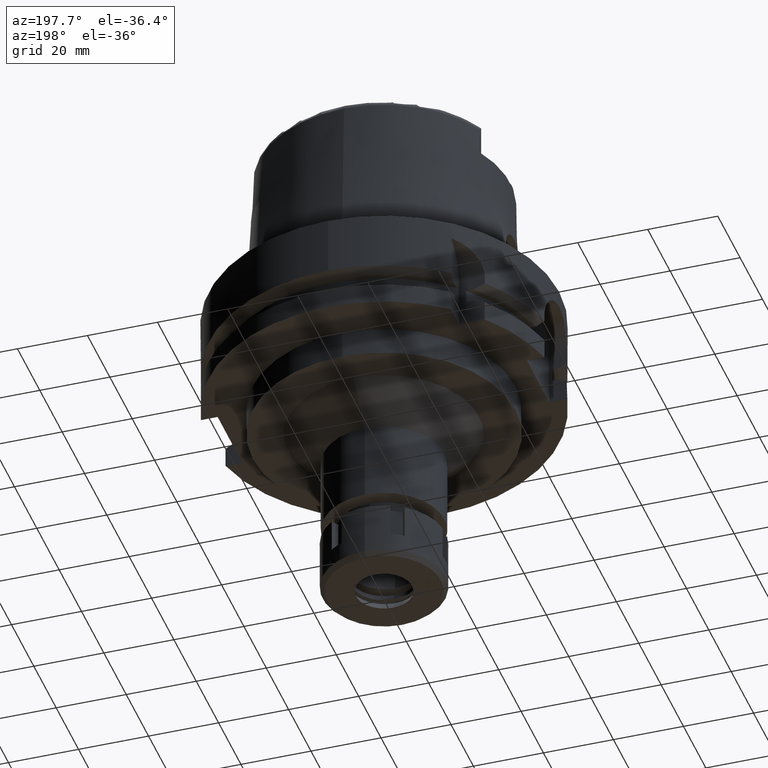
[diagram: clean part render]
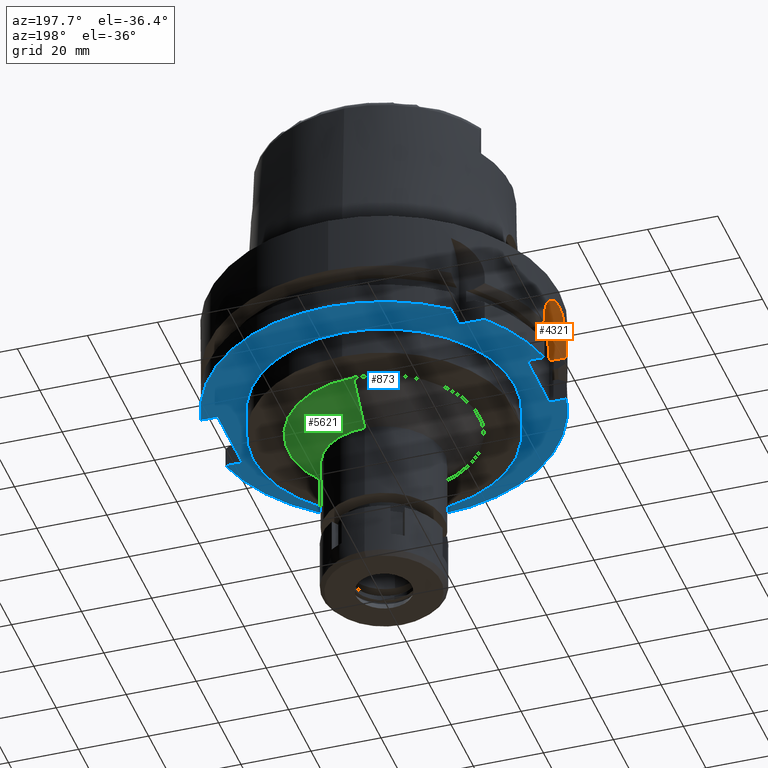
[diagram: same view with three faces highlighted in distinct colors, each labeled with its STEP entity id]
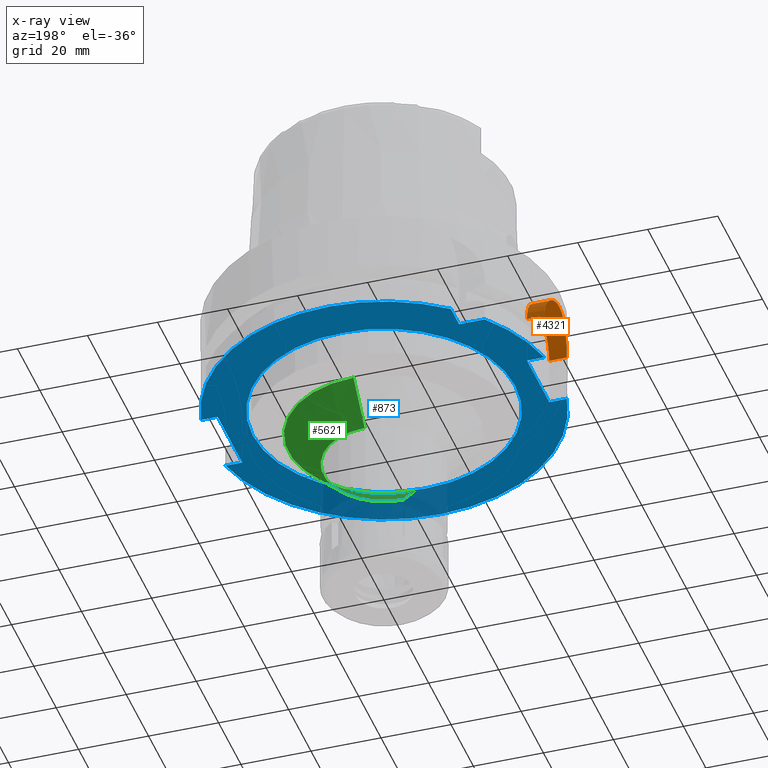
[diagram: x-ray of the same camera — body ghosted, the three highlighted faces saturated]
A machine part, auxiliary view with three faces highlighted in distinct colors.
The next image is the same camera in x-ray (body ghosted, the three faces saturated) — at least one of them is partly hidden behind the body in this view.
Their STEP definitions:

[orange] entity #4321 — the highlighted cylindrical surface (partial cylindrical patch) has radius 10 mm, axis along (1, 0, 0).
#27 = CARTESIAN_POINT ( 'NONE',  ( -49.94994066468480298, -2.259794752817469110, -5.253209555805507414 ) ) ;
#270 = CARTESIAN_POINT ( 'NONE',  ( -44.00000000000000000, 10.00000000000000000, -15.00000000000000000 ) ) ;
#371 = CARTESIAN_POINT ( 'NONE',  ( -49.62881521159336273, -6.086586877219529512, -7.058779781998447689 ) ) ;
#400 = CARTESIAN_POINT ( 'NONE',  ( -49.09036018454670369, 9.497439763984472094, -11.80158618427494410 ) ) ;
#432 = CARTESIAN_POINT ( 'NONE',  ( -49.56392084514535412, 6.594210339440433444, -7.474928745218221593 ) ) ;
#451 = FACE_OUTER_BOUND ( 'NONE', #3089, .T. ) ;
#466 = CARTESIAN_POINT ( 'NONE',  ( -49.62899891494354421, 6.085090487835675077, -7.057631952576961076 ) ) ;
#494 = CARTESIAN_POINT ( 'NONE',  ( -49.98420942202844941, -1.297367244915107687, -5.079122034242771200 ) ) ;
#643 = CIRCLE ( 'NONE', #2026, 10.00000000000000000 ) ;
#648 = EDGE_CURVE ( 'NONE', #1520, #3652, #3940, .T. ) ;
#842 = CARTESIAN_POINT ( 'NONE',  ( -49.56373229003720837, -6.595625868857654339, -7.476172084618819547 ) ) ;
#872 = CARTESIAN_POINT ( 'NONE',  ( -48.98979485565999425, 10.00000000000000000, -15.00000000000000000 ) ) ;
#1223 = CARTESIAN_POINT ( 'NONE',  ( -44.00000000000000000, -10.00000000000000000, -15.00000000000000000 ) ) ;
#1337 = CARTESIAN_POINT ( 'NONE',  ( -48.98979485566341907, -10.00000000000061995, -14.34992636891092666 ) ) ;
#1355 = CARTESIAN_POINT ( 'NONE',  ( -50.00000000000000000, 0.0000000000000000000, -15.00000000000000000 ) ) ;
#1367 = CARTESIAN_POINT ( 'NONE',  ( -49.36390707118801657, -7.958783023983241556, -8.909500093796756559 ) ) ;
#1430 = CARTESIAN_POINT ( 'NONE',  ( -49.93465246831761561, 2.574515594304664035, -5.331509912841217336 ) ) ;
#1459 = CARTESIAN_POINT ( 'NONE',  ( -49.72224263843126124, -5.270247532519865885, -6.495087439147432029 ) ) ;
#1520 = VERTEX_POINT ( 'NONE', #270 ) ;
#1801 = CARTESIAN_POINT ( 'NONE',  ( -49.09278989258839943, -9.481937093884811318, -11.80611569221511559 ) ) ;
#1833 = CARTESIAN_POINT ( 'NONE',  ( -49.97485841623518610, -1.617643659042722337, -5.126307811638905143 ) ) ;
#1867 = CARTESIAN_POINT ( 'NONE',  ( -49.24041324777747519, -8.690181341251232539, -10.00850486959623176 ) ) ;
#1896 = CARTESIAN_POINT ( 'NONE',  ( -49.00274337469999608, -9.937182510806511715, -13.70561547083139331 ) ) ;
#1923 = CARTESIAN_POINT ( 'NONE',  ( -49.87788521341418146, -3.505694118459035558, -5.628880875401277351 ) ) ;
#2026 = AXIS2_PLACEMENT_3D ( 'NONE', #4726, #3427, #2372 ) ;
#2268 = CARTESIAN_POINT ( 'NONE',  ( -49.43022059887681507, -7.541711222667776937, -8.400035818733632809 ) ) ;
#2295 = CARTESIAN_POINT ( 'NONE',  ( -49.18453679201154216, 8.997008707026115104, -10.58560031123585965 ) ) ;
#2331 = CARTESIAN_POINT ( 'NONE',  ( -49.99999360500559931, -0.3269239678294739715, -5.000048098238591976 ) ) ;
#2348 = DIRECTION ( 'NONE',  ( 0.0000000000000000000, 0.0000000000000000000, 1.000000000000000000 ) ) ;
#2363 = CARTESIAN_POINT ( 'NONE',  ( -49.87786566908135200, 3.505808458107193104, -5.628992301551426714 ) ) ;
#2372 = DIRECTION ( 'NONE',  ( 0.0000000000000000000, 0.0000000000000000000, 1.000000000000000000 ) ) ;
#2413 = CARTESIAN_POINT ( 'NONE',  ( -48.98979485565999425, -10.00000000000000000, -15.00000000000000000 ) ) ;
#2449 = DIRECTION ( 'NONE',  ( 1.000000000000000000, 4.627973610177999800E-14, 0.0000000000000000000 ) ) ;
#2734 = CARTESIAN_POINT ( 'NONE',  ( -49.80582381222812671, -4.411840447473320381, -6.019770980953928152 ) ) ;
#2761 = CARTESIAN_POINT ( 'NONE',  ( -49.83132479518987168, -4.114898998883623094, -5.879966185470739681 ) ) ;
#2791 = CARTESIAN_POINT ( 'NONE',  ( -49.05327106856116615, 9.684690085528719905, -12.42418889650314107 ) ) ;
#2809 = CYLINDRICAL_SURFACE ( 'NONE', #3971, 10.00000000000000000 ) ;
#2826 = CARTESIAN_POINT ( 'NONE',  ( -49.36522353530785523, 7.944764735771466135, -8.917965014434020787 ) ) ;
#3089 = EDGE_LOOP ( 'NONE', ( #4668, #3951, #3320, #5954 ) ) ;
#3233 = CARTESIAN_POINT ( 'NONE',  ( -48.98979485566341907, 10.00000000000068212, -14.67477384672370100 ) ) ;
#3259 = CARTESIAN_POINT ( 'NONE',  ( -50.00001276120485727, 0.6509093675188895034, -4.999956924247983991 ) ) ;
#3288 = CARTESIAN_POINT ( 'NONE',  ( -49.89857304296576501, 3.198445865227089069, -5.519613993474073332 ) ) ;
#3320 = ORIENTED_EDGE ( 'NONE', *, *, #5040, .F. ) ;
#3325 = CARTESIAN_POINT ( 'NONE',  ( -49.00580010131365327, 9.921319867194132058, -13.70617931160536962 ) ) ;
#3405 = VECTOR ( 'NONE', #5848, 1000.000000000000000 ) ;
#3427 = DIRECTION ( 'NONE',  ( 1.000000000000000000, 0.0000000000000000000, 0.0000000000000000000 ) ) ;
#3478 = CARTESIAN_POINT ( 'NONE',  ( -44.00000000000000000, 10.00000000000000000, -15.00000000000000000 ) ) ;
#3560 = B_SPLINE_CURVE_WITH_KNOTS ( 'NONE', 3,
 ( #872, #3233, #5685, #3325, #5213, #2791, #400, #2295, #5121, #5717, #2826, #4251, #5089, #4683, #432, #466, #5180, #3749, #4280, #5651, #6093, #2363, #3288, #1430, #4746, #4628, #3259, #2331, #5149, #494, #1833, #27, #3721, #4217, #1923, #2761, #2734, #6126, #1459, #4718, #371, #842, #5624, #2268, #1367, #1867, #4152, #6059, #1801, #3687, #5584, #1896, #1337, #4338 ),
 .UNSPECIFIED., .F., .F.,
 ( 4, 2, 2, 2, 2, 2, 2, 2, 2, 2, 2, 2, 2, 2, 2, 2, 2, 2, 2, 2, 2, 2, 2, 2, 2, 2, 4 ),
 ( 0.0000000000000000000, 0.03125000000000011102, 0.06250000000000022204, 0.1250000000000004163, 0.1875000000000006106, 0.2187500000000007216, 0.2500000000000008327, 0.2812500000000008327, 0.3125000000000008327, 0.3437500000000008327, 0.3750000000000008327, 0.4062500000000007772, 0.4375000000000007216, 0.5000000000000005551, 0.5312500000000005551, 0.5625000000000005551, 0.5937500000000005551, 0.6250000000000005551, 0.6562500000000005551, 0.6875000000000005551, 0.7187500000000005551, 0.7500000000000005551, 0.8125000000000004441, 0.8750000000000003331, 0.9062500000000002220, 0.9375000000000001110, 1.000000000000000000 ),
 .UNSPECIFIED. ) ;
#3652 = VERTEX_POINT ( 'NONE', #3809 ) ;
#3687 = CARTESIAN_POINT ( 'NONE',  ( -49.05614964883081797, -9.669712101284867245, -12.42999805995558305 ) ) ;
#3703 = EDGE_CURVE ( 'NONE', #3652, #5595, #3560, .T. ) ;
#3721 = CARTESIAN_POINT ( 'NONE',  ( -49.93455893158446912, -2.576326564035913869, -5.331990395739981459 ) ) ;
#3749 = CARTESIAN_POINT ( 'NONE',  ( -49.72222128286315979, 5.270358358214859429, -6.495232976551800874 ) ) ;
#3799 = LINE ( 'NONE', #2413, #3978 ) ;
#3809 = CARTESIAN_POINT ( 'NONE',  ( -48.98979485565999425, 10.00000000000000000, -15.00000000000000000 ) ) ;
#3940 = LINE ( 'NONE', #3478, #3405 ) ;
#3951 = ORIENTED_EDGE ( 'NONE', *, *, #5614, .T. ) ;
#3971 = AXIS2_PLACEMENT_3D ( 'NONE', #1355, #5638, #2348 ) ;
#3978 = VECTOR ( 'NONE', #2449, 1000.000000000000000 ) ;
#4152 = CARTESIAN_POINT ( 'NONE',  ( -49.18424439192180131, -8.998583427525336020, -10.58912033888665505 ) ) ;
#4217 = CARTESIAN_POINT ( 'NONE',  ( -49.89845962713046390, -3.200212664194285850, -5.520212011311250500 ) ) ;
#4251 = CARTESIAN_POINT ( 'NONE',  ( -49.43056103556367020, 7.527563822850312114, -8.408713046767697818 ) ) ;
#4280 = CARTESIAN_POINT ( 'NONE',  ( -49.75134977747793386, 4.988750540692706181, -6.326968285705540040 ) ) ;
#4321 = ADVANCED_FACE ( 'NONE', ( #451 ), #2809, .F. ) ;
#4338 = CARTESIAN_POINT ( 'NONE',  ( -48.98979485565999425, -10.00000000000000000, -15.00000000000000000 ) ) ;
#4628 = CARTESIAN_POINT ( 'NONE',  ( -49.98727337604294263, 1.297072131884469570, -5.063079227123298942 ) ) ;
#4668 = ORIENTED_EDGE ( 'NONE', *, *, #648, .F. ) ;
#4683 = CARTESIAN_POINT ( 'NONE',  ( -49.53074240762869351, 6.838214994895060350, -7.696049756172459233 ) ) ;
#4718 = CARTESIAN_POINT ( 'NONE',  ( -49.66071698589643546, -5.821521321421013972, -6.862562852904170896 ) ) ;
#4726 = CARTESIAN_POINT ( 'NONE',  ( -44.00000000000000000, 0.0000000000000000000, -15.00000000000000000 ) ) ;
#4746 = CARTESIAN_POINT ( 'NONE',  ( -49.95007296249472972, 2.256697800569569257, -5.252537339674993255 ) ) ;
#4827 = CARTESIAN_POINT ( 'NONE',  ( -48.98979485565999425, -10.00000000000000000, -15.00000000000000000 ) ) ;
#5040 = EDGE_CURVE ( 'NONE', #5595, #5135, #3799, .T. ) ;
#5089 = CARTESIAN_POINT ( 'NONE',  ( -49.46402646853832152, 7.305184000900602825, -8.163237007348122631 ) ) ;
#5121 = CARTESIAN_POINT ( 'NONE',  ( -49.24057617454467817, 8.689264381284512950, -10.00689432263757261 ) ) ;
#5135 = VERTEX_POINT ( 'NONE', #1223 ) ;
#5149 = CARTESIAN_POINT ( 'NONE',  ( -49.99680002002526891, -0.6514146689907366339, -5.015875041971508352 ) ) ;
#5180 = CARTESIAN_POINT ( 'NONE',  ( -49.66109665971371356, 5.818199470677054563, -6.860273031121217002 ) ) ;
#5213 = CARTESIAN_POINT ( 'NONE',  ( -49.01532077360067774, 9.874334691798127395, -13.38637230121983279 ) ) ;
#5584 = CARTESIAN_POINT ( 'NONE',  ( -49.04050012748191989, -9.748510700173220300, -12.74779322322638997 ) ) ;
#5595 = VERTEX_POINT ( 'NONE', #4827 ) ;
#5614 = EDGE_CURVE ( 'NONE', #1520, #5135, #643, .T. ) ;
#5624 = CARTESIAN_POINT ( 'NONE',  ( -49.53067426088643543, -6.838737925735863143, -7.696485171463537611 ) ) ;
#5638 = DIRECTION ( 'NONE',  ( 1.000000000000000000, 0.0000000000000000000, 0.0000000000000000000 ) ) ;
#5651 = CARTESIAN_POINT ( 'NONE',  ( -49.80597247480898915, 4.410163543088208904, -6.018949576889937703 ) ) ;
#5685 = CARTESIAN_POINT ( 'NONE',  ( -48.99301409864090573, 9.984267675071087922, -14.35096447838950695 ) ) ;
#5717 = CARTESIAN_POINT ( 'NONE',  ( -49.33322137804878338, 8.140496473599078797, -9.182651765820171619 ) ) ;
#5848 = DIRECTION ( 'NONE',  ( -1.000000000000000000, 4.627973610177999800E-14, 0.0000000000000000000 ) ) ;
#5954 = ORIENTED_EDGE ( 'NONE', *, *, #3703, .F. ) ;
#6059 = CARTESIAN_POINT ( 'NONE',  ( -49.11383813249523911, -9.372673253755635869, -11.49857013436666442 ) ) ;
#6093 = CARTESIAN_POINT ( 'NONE',  ( -49.83161392523056321, 4.111256529898119183, -5.878401453227955820 ) ) ;
#6126 = CARTESIAN_POINT ( 'NONE',  ( -49.75118674890808279, -4.990374617595827900, -6.327904852817182402 ) ) ;

[blue] entity #873 — the highlighted planar face has unit normal (0, 0, 1).
#50 = VECTOR ( 'NONE', #4461, 1000.000000000000000 ) ;
#148 = EDGE_CURVE ( 'NONE', #767, #2490, #2818, .T. ) ;
#158 = CARTESIAN_POINT ( 'NONE',  ( -48.98979485565999425, -10.00000000000000000, -29.00000000000000000 ) ) ;
#162 = ORIENTED_EDGE ( 'NONE', *, *, #2735, .T. ) ;
#383 = LINE ( 'NONE', #5979, #799 ) ;
#427 = DIRECTION ( 'NONE',  ( -1.000000000000000000, 4.627973610177000155E-14, 0.0000000000000000000 ) ) ;
#431 = LINE ( 'NONE', #4278, #5385 ) ;
#452 = EDGE_CURVE ( 'NONE', #6061, #2349, #2230, .T. ) ;
#538 = CIRCLE ( 'NONE', #3418, 37.50000000000000000 ) ;
#554 = VERTEX_POINT ( 'NONE', #3774 ) ;
#563 = VERTEX_POINT ( 'NONE', #926 ) ;
#595 = CARTESIAN_POINT ( 'NONE',  ( -44.00000000000000000, -10.00000000000000000, -29.00000000000000000 ) ) ;
#741 = VERTEX_POINT ( 'NONE', #5404 ) ;
#767 = VERTEX_POINT ( 'NONE', #1411 ) ;
#799 = VECTOR ( 'NONE', #5132, 1000.000000000000000 ) ;
#803 = VECTOR ( 'NONE', #5944, 1000.000000000000000 ) ;
#851 = LINE ( 'NONE', #4635, #803 ) ;
#857 = LINE ( 'NONE', #885, #5450 ) ;
#863 = DIRECTION ( 'NONE',  ( 0.0000000000000000000, -1.000000000000000000, 0.0000000000000000000 ) ) ;
#864 = DIRECTION ( 'NONE',  ( 0.0000000000000000000, 0.0000000000000000000, 1.000000000000000000 ) ) ;
#873 = ADVANCED_FACE ( 'NONE', ( #5783, #1523 ), #5310, .F. ) ;
#885 = CARTESIAN_POINT ( 'NONE',  ( -31.50000000000000000, 31.50000000000000000, -29.00000000000000000 ) ) ;
#926 = CARTESIAN_POINT ( 'NONE',  ( -44.00000000000000000, 10.00000000000000000, -29.00000000000000000 ) ) ;
#931 = CARTESIAN_POINT ( 'NONE',  ( 48.77499359303000404, 11.00000000000000000, -29.00000000000000000 ) ) ;
#963 = DIRECTION ( 'NONE',  ( -1.000000000000000000, 1.785659532940000023E-14, 0.0000000000000000000 ) ) ;
#1102 = VECTOR ( 'NONE', #963, 1000.000000000000000 ) ;
#1203 = EDGE_CURVE ( 'NONE', #4058, #1635, #431, .T. ) ;
#1275 = CARTESIAN_POINT ( 'NONE',  ( 0.0000000000000000000, -37.50000000000000000, -29.00000000000000000 ) ) ;
#1411 = CARTESIAN_POINT ( 'NONE',  ( -38.82975663071000128, 31.50000000000000000, -29.00000000000000000 ) ) ;
#1440 = ORIENTED_EDGE ( 'NONE', *, *, #2877, .F. ) ;
#1513 = ORIENTED_EDGE ( 'NONE', *, *, #1203, .T. ) ;
#1523 = FACE_BOUND ( 'NONE', #5840, .T. ) ;
#1528 = AXIS2_PLACEMENT_3D ( 'NONE', #2270, #3169, #3752 ) ;
#1635 = VERTEX_POINT ( 'NONE', #4582 ) ;
#1730 = VERTEX_POINT ( 'NONE', #5610 ) ;
#1780 = EDGE_CURVE ( 'NONE', #4631, #2757, #538, .T. ) ;
#1802 = VECTOR ( 'NONE', #427, 1000.000000000000000 ) ;
#1814 = DIRECTION ( 'NONE',  ( -1.000000000000000000, -4.798503851105999980E-14, 0.0000000000000000000 ) ) ;
#1873 = CARTESIAN_POINT ( 'NONE',  ( 48.77499359303000404, -11.00000000000000000, -29.00000000000000000 ) ) ;
#1954 = DIRECTION ( 'NONE',  ( 0.0000000000000000000, 1.000000000000000000, 0.0000000000000000000 ) ) ;
#2000 = CIRCLE ( 'NONE', #3675, 37.50000000000000000 ) ;
#2198 = CARTESIAN_POINT ( 'NONE',  ( -44.00000000000000000, 10.00000000000000000, -29.00000000000000000 ) ) ;
#2230 = CIRCLE ( 'NONE', #4899, 50.00000000000000000 ) ;
#2270 = CARTESIAN_POINT ( 'NONE',  ( 0.0000000000000000000, 0.0000000000000000000, -29.00000000000000000 ) ) ;
#2349 = VERTEX_POINT ( 'NONE', #3266 ) ;
#2490 = VERTEX_POINT ( 'NONE', #3390 ) ;
#2495 = EDGE_CURVE ( 'NONE', #2349, #1635, #4786, .T. ) ;
#2658 = ORIENTED_EDGE ( 'NONE', *, *, #2495, .F. ) ;
#2663 = ORIENTED_EDGE ( 'NONE', *, *, #6079, .F. ) ;
#2724 = EDGE_CURVE ( 'NONE', #741, #767, #857, .T. ) ;
#2725 = CARTESIAN_POINT ( 'NONE',  ( 44.00000000000000000, 11.00000000000000000, -29.00000000000000000 ) ) ;
#2735 = EDGE_CURVE ( 'NONE', #1730, #563, #383, .T. ) ;
#2757 = VERTEX_POINT ( 'NONE', #3664 ) ;
#2788 = CARTESIAN_POINT ( 'NONE',  ( 0.0000000000000000000, 0.0000000000000000000, -29.00000000000000000 ) ) ;
#2818 = CIRCLE ( 'NONE', #1528, 50.00000000000000711 ) ;
#2849 = DIRECTION ( 'NONE',  ( 0.0000000000000000000, 0.0000000000000000000, -1.000000000000000000 ) ) ;
#2875 = VECTOR ( 'NONE', #4820, 1000.000000000000000 ) ;
#2877 = EDGE_CURVE ( 'NONE', #5442, #554, #3868, .T. ) ;
#2954 = CARTESIAN_POINT ( 'NONE',  ( 0.0000000000000000000, 0.0000000000000000000, -29.00000000000000000 ) ) ;
#3015 = LINE ( 'NONE', #595, #50 ) ;
#3071 = ORIENTED_EDGE ( 'NONE', *, *, #3666, .T. ) ;
#3169 = DIRECTION ( 'NONE',  ( 0.0000000000000000000, 0.0000000000000000000, 1.000000000000000000 ) ) ;
#3260 = ORIENTED_EDGE ( 'NONE', *, *, #2724, .F. ) ;
#3266 = CARTESIAN_POINT ( 'NONE',  ( 48.77499359303000404, -11.00000000000000000, -29.00000000000000000 ) ) ;
#3290 = EDGE_CURVE ( 'NONE', #741, #554, #851, .T. ) ;
#3354 = DIRECTION ( 'NONE',  ( 0.0000000000000000000, 0.0000000000000000000, -1.000000000000000000 ) ) ;
#3355 = ORIENTED_EDGE ( 'NONE', *, *, #452, .F. ) ;
#3390 = CARTESIAN_POINT ( 'NONE',  ( -48.98979485565999425, 10.00000000000000000, -29.00000000000000000 ) ) ;
#3418 = AXIS2_PLACEMENT_3D ( 'NONE', #6020, #2849, #863 ) ;
#3620 = EDGE_LOOP ( 'NONE', ( #1440, #3071, #1513, #2658, #3355, #2663, #162, #4997, #4421, #3260, #3848 ) ) ;
#3664 = CARTESIAN_POINT ( 'NONE',  ( 0.0000000000000000000, 37.50000000000000000, -29.00000000000000000 ) ) ;
#3666 = EDGE_CURVE ( 'NONE', #5442, #4058, #3779, .T. ) ;
#3675 = AXIS2_PLACEMENT_3D ( 'NONE', #5868, #3354, #1954 ) ;
#3709 = AXIS2_PLACEMENT_3D ( 'NONE', #2954, #4844, #4556 ) ;
#3752 = DIRECTION ( 'NONE',  ( -0.7765951326141738997, 0.6299999999999789102, 0.0000000000000000000 ) ) ;
#3774 = CARTESIAN_POINT ( 'NONE',  ( -31.50000000000000000, 38.82975663071000128, -29.00000000000000000 ) ) ;
#3779 = LINE ( 'NONE', #931, #1102 ) ;
#3828 = EDGE_CURVE ( 'NONE', #2757, #4631, #2000, .T. ) ;
#3848 = ORIENTED_EDGE ( 'NONE', *, *, #3290, .T. ) ;
#3868 = CIRCLE ( 'NONE', #5161, 50.00000000000000000 ) ;
#4048 = EDGE_CURVE ( 'NONE', #563, #2490, #4552, .T. ) ;
#4058 = VERTEX_POINT ( 'NONE', #2725 ) ;
#4278 = CARTESIAN_POINT ( 'NONE',  ( 44.00000000000000000, 11.00000000000000000, -29.00000000000000000 ) ) ;
#4421 = ORIENTED_EDGE ( 'NONE', *, *, #148, .F. ) ;
#4461 = DIRECTION ( 'NONE',  ( -1.000000000000000000, -4.627973610177000155E-14, 0.0000000000000000000 ) ) ;
#4552 = LINE ( 'NONE', #2198, #1802 ) ;
#4556 = DIRECTION ( 'NONE',  ( 1.000000000000000000, 0.0000000000000000000, 0.0000000000000000000 ) ) ;
#4582 = CARTESIAN_POINT ( 'NONE',  ( 44.00000000000000000, -11.00000000000000000, -29.00000000000000000 ) ) ;
#4622 = DIRECTION ( 'NONE',  ( 0.0000000000000000000, -1.000000000000000000, 0.0000000000000000000 ) ) ;
#4631 = VERTEX_POINT ( 'NONE', #1275 ) ;
#4635 = CARTESIAN_POINT ( 'NONE',  ( -31.50000000000000000, 31.50000000000000000, -29.00000000000000000 ) ) ;
#4646 = DIRECTION ( 'NONE',  ( 0.0000000000000000000, 1.000000000000000000, 0.0000000000000000000 ) ) ;
#4664 = CARTESIAN_POINT ( 'NONE',  ( 48.77499359303000404, 11.00000000000000000, -29.00000000000000000 ) ) ;
#4679 = DIRECTION ( 'NONE',  ( 0.0000000000000000000, 0.0000000000000000000, 1.000000000000000000 ) ) ;
#4786 = LINE ( 'NONE', #1873, #2875 ) ;
#4820 = DIRECTION ( 'NONE',  ( -1.000000000000000000, -1.711257052401000108E-14, 0.0000000000000000000 ) ) ;
#4844 = DIRECTION ( 'NONE',  ( 0.0000000000000000000, 0.0000000000000000000, 1.000000000000000000 ) ) ;
#4899 = AXIS2_PLACEMENT_3D ( 'NONE', #2788, #4679, #4622 ) ;
#4997 = ORIENTED_EDGE ( 'NONE', *, *, #4048, .T. ) ;
#5047 = CARTESIAN_POINT ( 'NONE',  ( 0.0000000000000000000, 0.0000000000000000000, -29.00000000000000000 ) ) ;
#5132 = DIRECTION ( 'NONE',  ( 0.0000000000000000000, 1.000000000000000000, 0.0000000000000000000 ) ) ;
#5150 = ORIENTED_EDGE ( 'NONE', *, *, #1780, .F. ) ;
#5161 = AXIS2_PLACEMENT_3D ( 'NONE', #5047, #864, #4646 ) ;
#5310 = PLANE ( 'NONE',  #3709 ) ;
#5385 = VECTOR ( 'NONE', #6056, 1000.000000000000000 ) ;
#5404 = CARTESIAN_POINT ( 'NONE',  ( -31.50000000000000000, 31.50000000000000000, -29.00000000000000000 ) ) ;
#5442 = VERTEX_POINT ( 'NONE', #4664 ) ;
#5450 = VECTOR ( 'NONE', #1814, 1000.000000000000000 ) ;
#5610 = CARTESIAN_POINT ( 'NONE',  ( -44.00000000000000000, -10.00000000000000000, -29.00000000000000000 ) ) ;
#5783 = FACE_OUTER_BOUND ( 'NONE', #3620, .T. ) ;
#5840 = EDGE_LOOP ( 'NONE', ( #5927, #5150 ) ) ;
#5868 = CARTESIAN_POINT ( 'NONE',  ( 0.0000000000000000000, 0.0000000000000000000, -29.00000000000000000 ) ) ;
#5927 = ORIENTED_EDGE ( 'NONE', *, *, #3828, .F. ) ;
#5944 = DIRECTION ( 'NONE',  ( 4.798503851105999980E-14, 1.000000000000000000, 0.0000000000000000000 ) ) ;
#5979 = CARTESIAN_POINT ( 'NONE',  ( -44.00000000000000000, -10.00000000000000000, -29.00000000000000000 ) ) ;
#6020 = CARTESIAN_POINT ( 'NONE',  ( 0.0000000000000000000, 0.0000000000000000000, -29.00000000000000000 ) ) ;
#6056 = DIRECTION ( 'NONE',  ( 0.0000000000000000000, -1.000000000000000000, 0.0000000000000000000 ) ) ;
#6061 = VERTEX_POINT ( 'NONE', #158 ) ;
#6079 = EDGE_CURVE ( 'NONE', #1730, #6061, #3015, .T. ) ;

[green] entity #5621 — the highlighted conical surface has half-angle 45 deg.
#70 = EDGE_CURVE ( 'NONE', #3309, #2412, #2217, .T. ) ;
#133 = LINE ( 'NONE', #633, #5679 ) ;
#325 = AXIS2_PLACEMENT_3D ( 'NONE', #2828, #3292, #4653 ) ;
#614 = DIRECTION ( 'NONE',  ( 0.0000000000000000000, 1.000000000000000000, 0.0000000000000000000 ) ) ;
#633 = CARTESIAN_POINT ( 'NONE',  ( 0.0000000000000000000, -27.25000000000000000, -37.00000000000000000 ) ) ;
#709 = ORIENTED_EDGE ( 'NONE', *, *, #3026, .T. ) ;
#841 = ORIENTED_EDGE ( 'NONE', *, *, #3177, .F. ) ;
#1016 = VERTEX_POINT ( 'NONE', #2697 ) ;
#1443 = CARTESIAN_POINT ( 'NONE',  ( 0.0000000000000000000, 0.0000000000000000000, -42.00000000000000000 ) ) ;
#1454 = CARTESIAN_POINT ( 'NONE',  ( 0.0000000000000000000, 27.25000000000000000, -37.00000000000000000 ) ) ;
#1694 = ORIENTED_EDGE ( 'NONE', *, *, #4548, .T. ) ;
#1908 = DIRECTION ( 'NONE',  ( 0.0000000000000000000, 1.000000000000000000, 0.0000000000000000000 ) ) ;
#2217 = CIRCLE ( 'NONE', #325, 17.25000000000000000 ) ;
#2274 = CARTESIAN_POINT ( 'NONE',  ( 0.0000000000000000000, 27.25000000000000000, -37.00000000000000000 ) ) ;
#2407 = DIRECTION ( 'NONE',  ( 0.0000000000000000000, 0.0000000000000000000, 1.000000000000000000 ) ) ;
#2412 = VERTEX_POINT ( 'NONE', #5499 ) ;
#2451 = CARTESIAN_POINT ( 'NONE',  ( 0.0000000000000000000, 0.0000000000000000000, -37.00000000000000000 ) ) ;
#2612 = CARTESIAN_POINT ( 'NONE',  ( 0.0000000000000000000, 17.25000000000000000, -47.00000000000000000 ) ) ;
#2697 = CARTESIAN_POINT ( 'NONE',  ( 0.0000000000000000000, -27.25000000000000000, -37.00000000000000000 ) ) ;
#2828 = CARTESIAN_POINT ( 'NONE',  ( 0.0000000000000000000, 0.0000000000000000000, -47.00000000000000000 ) ) ;
#2881 = CIRCLE ( 'NONE', #4561, 27.25000000000000000 ) ;
#3026 = EDGE_CURVE ( 'NONE', #3228, #1016, #2881, .T. ) ;
#3177 = EDGE_CURVE ( 'NONE', #3228, #3309, #5709, .T. ) ;
#3228 = VERTEX_POINT ( 'NONE', #2274 ) ;
#3292 = DIRECTION ( 'NONE',  ( 0.0000000000000000000, 0.0000000000000000000, -1.000000000000000000 ) ) ;
#3309 = VERTEX_POINT ( 'NONE', #2612 ) ;
#3316 = DIRECTION ( 'NONE',  ( 0.0000000000000000000, 0.0000000000000000000, -1.000000000000000000 ) ) ;
#3348 = DIRECTION ( 'NONE',  ( 0.0000000000000000000, -0.7071067811865474617, -0.7071067811865474617 ) ) ;
#3508 = AXIS2_PLACEMENT_3D ( 'NONE', #1443, #2407, #1908 ) ;
#3912 = EDGE_LOOP ( 'NONE', ( #709, #1694, #5249, #841 ) ) ;
#4002 = CONICAL_SURFACE ( 'NONE', #3508, 22.25000000000000000, 0.7853981633972997312 ) ;
#4163 = VECTOR ( 'NONE', #3348, 1000.000000000000114 ) ;
#4409 = DIRECTION ( 'NONE',  ( 0.0000000000000000000, 0.7071067811865474617, -0.7071067811865474617 ) ) ;
#4548 = EDGE_CURVE ( 'NONE', #1016, #2412, #133, .T. ) ;
#4561 = AXIS2_PLACEMENT_3D ( 'NONE', #2451, #3316, #614 ) ;
#4653 = DIRECTION ( 'NONE',  ( 0.0000000000000000000, 1.000000000000000000, 0.0000000000000000000 ) ) ;
#5194 = FACE_OUTER_BOUND ( 'NONE', #3912, .T. ) ;
#5249 = ORIENTED_EDGE ( 'NONE', *, *, #70, .F. ) ;
#5499 = CARTESIAN_POINT ( 'NONE',  ( 0.0000000000000000000, -17.25000000000000000, -47.00000000000000000 ) ) ;
#5621 = ADVANCED_FACE ( 'NONE', ( #5194 ), #4002, .T. ) ;
#5679 = VECTOR ( 'NONE', #4409, 1000.000000000000114 ) ;
#5709 = LINE ( 'NONE', #1454, #4163 ) ;